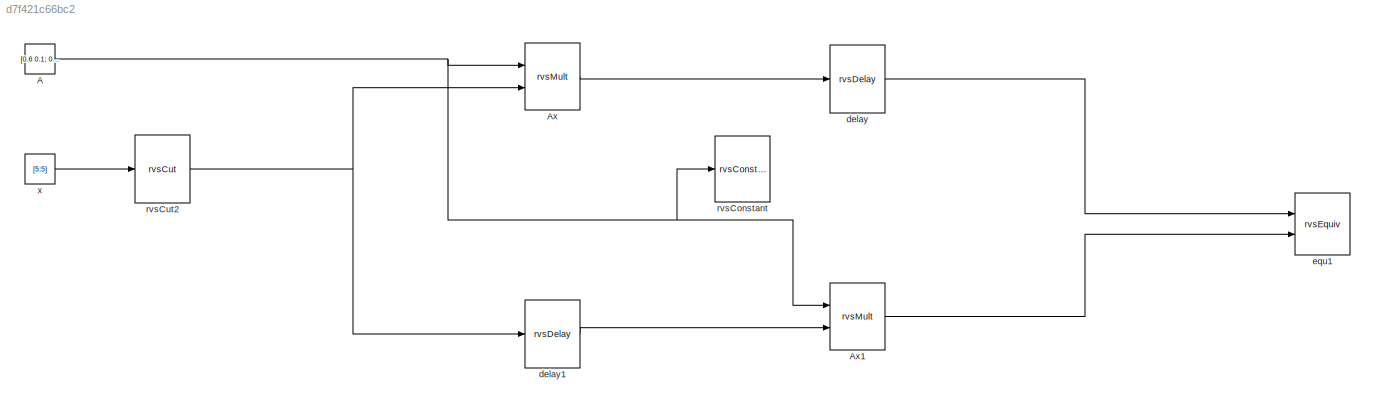
MODEL slx_d7f421c66bc2
KIND model
CONFIG AbsTol = auto
CONFIG FixedStep = auto
CONFIG MaxStep = auto
CONFIG MinStep = auto
CONFIG RelTol = 1e-3
CONFIG SampleTimeConstraint = Unconstrained
CONFIG Solver = FixedStepDiscrete
CONFIG SolverMode = Auto
CONFIG SolverName = FixedStepDiscrete
CONFIG StartTime = 0.0
CONFIG StopTime = 10.0
BLOCK [Constant] A
  Value = [0.6 0.1; 0.0 0.5]
BLOCK [Reference] Ax  REF=rvs/rvsMult  (lib defined in slx_4df59143a37a)
  Ports = [2, 1]
  SourceBlock = rvs/rvsMult
  SourceType = rvsMult
BLOCK [Reference] Ax1  REF=rvs/rvsMult  (lib defined in slx_4df59143a37a)
  Ports = [2, 1]
  SourceBlock = rvs/rvsMult
  SourceType = rvsMult
BLOCK [Reference] delay  REF=rvs/rvsDelay  (lib defined in slx_4df59143a37a)
  Ports = [1, 1]
  SourceBlock = rvs/rvsDelay
  SourceType = rvsDelay
BLOCK [Reference] delay1  REF=rvs/rvsDelay  (lib defined in slx_4df59143a37a)
  Ports = [1, 1]
  SourceBlock = rvs/rvsDelay
  SourceType = rvsDelay
BLOCK [Reference] equ1  REF=rvs/rvsEquiv  (lib defined in slx_4df59143a37a)
  Ports = [2]
  SourceBlock = rvs/rvsEquiv
  SourceType = rvsEquiv
BLOCK [Reference] rvsConstant  REF=rvs/rvsConstant  (lib defined in slx_4df59143a37a)
  Ports = [1]
  SourceBlock = rvs/rvsConstant
  SourceType = rvsConstant
BLOCK [Reference] rvsCut2  REF=rvs/rvsCut  (lib defined in slx_4df59143a37a)
  Ports = [1, 1]
  SourceBlock = rvs/rvsCut
  SourceType = rvsCut
BLOCK [Constant] x
  Value = [5;5]
NET A:1 -> Ax1:1, Ax:1, rvsConstant:1
LINE Ax1:1 -> equ1:2
LINE Ax:1 -> delay:1
LINE delay1:1 -> Ax1:2
LINE delay:1 -> equ1:1
NET rvsCut2:1 -> Ax:2, delay1:1
LINE x:1 -> rvsCut2:1
note: NET lines group one-source signal fan-out (src -> all destinations, sorted); 1:1 wires keep LINE
